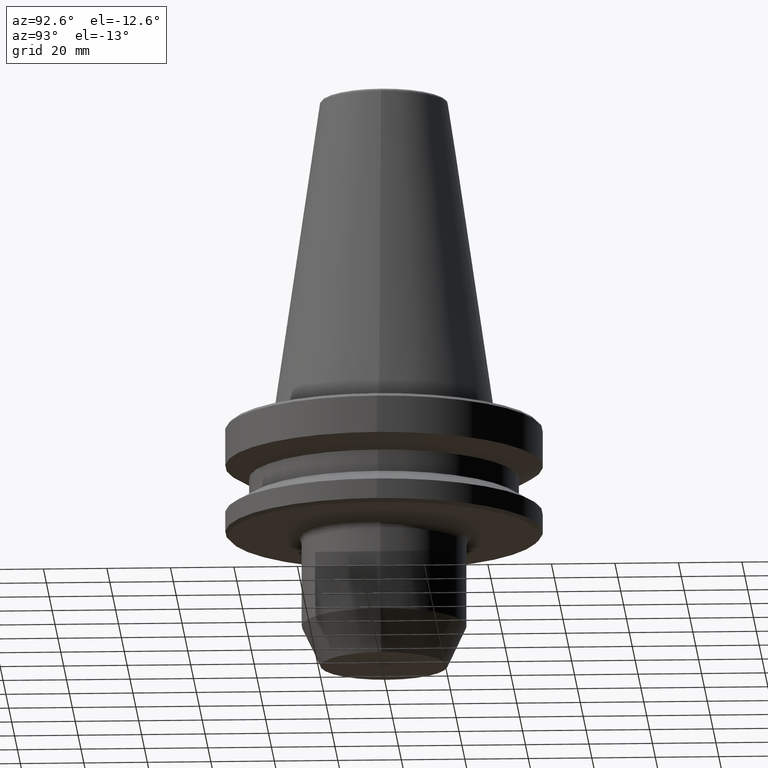
[diagram: clean part render]
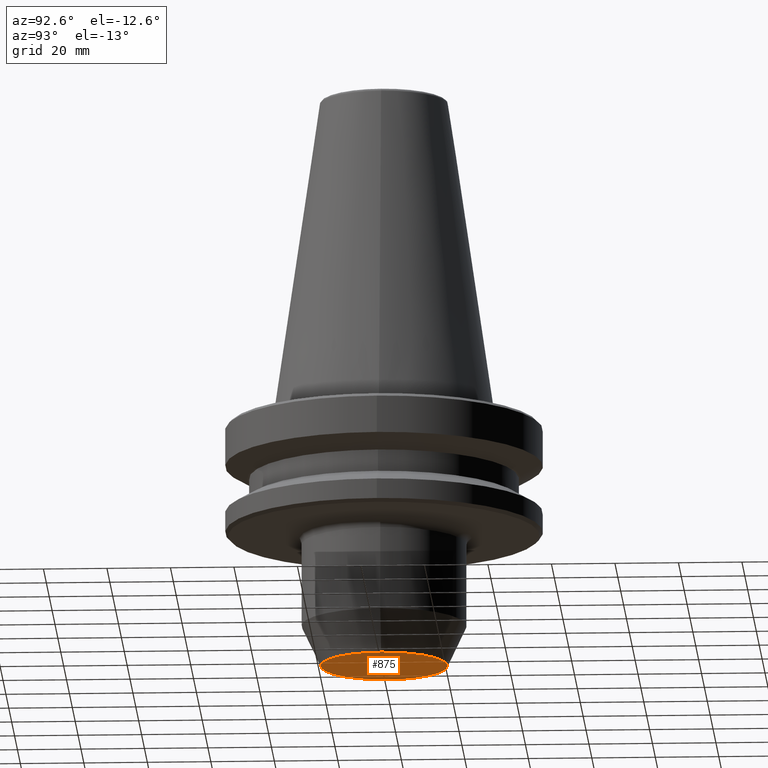
[diagram: same view with one face highlighted and labeled with its STEP entity id]
A machine part, auxiliary view. The second image highlights one B-rep face of the part: STEP entity #875.
In plain terms, the highlighted planar face has unit normal (0, -0, 1).
Its self-contained STEP definition (entity closure, byte-faithful):
#7 = DIRECTION ( 'NONE',  ( 0.0000000000000000000, -0.0000000000000000000, 1.000000000000000000 ) ) ;
#26 = DIRECTION ( 'NONE',  ( -0.0000000000000000000, -0.0000000000000000000, 1.000000000000000000 ) ) ;
#173 = AXIS2_PLACEMENT_3D ( 'NONE', #992, #26, #785 ) ;
#187 = ORIENTED_EDGE ( 'NONE', *, *, #765, .F. ) ;
#224 = CIRCLE ( 'NONE', #173, 19.99999999999790700 ) ;
#237 = CARTESIAN_POINT ( 'NONE',  ( 0.0000000000000000000, 19.99999999999790700, -80.00000000000140700 ) ) ;
#260 = DIRECTION ( 'NONE',  ( 1.000000000000000000, 0.0000000000000000000, 0.0000000000000000000 ) ) ;
#267 = CARTESIAN_POINT ( 'NONE',  ( 19.99999999999790700, 0.0000000000000000000, -80.00000000000142100 ) ) ;
#342 = VERTEX_POINT ( 'NONE', #665 ) ;
#349 = VERTEX_POINT ( 'NONE', #267 ) ;
#405 = DIRECTION ( 'NONE',  ( 1.000000000000000000, 0.0000000000000000000, 0.0000000000000000000 ) ) ;
#511 = CARTESIAN_POINT ( 'NONE',  ( 0.0000000000000000000, 0.0000000000000000000, -80.00000000000142100 ) ) ;
#570 = AXIS2_PLACEMENT_3D ( 'NONE', #237, #7, #260 ) ;
#571 = FACE_OUTER_BOUND ( 'NONE', #879, .T. ) ;
#598 = ORIENTED_EDGE ( 'NONE', *, *, #861, .F. ) ;
#665 = CARTESIAN_POINT ( 'NONE',  ( -19.99999999999790700, 2.816687638038642600E-015, -80.00000000000142100 ) ) ;
#685 = AXIS2_PLACEMENT_3D ( 'NONE', #511, #848, #405 ) ;
#765 = EDGE_CURVE ( 'NONE', #349, #342, #907, .T. ) ;
#785 = DIRECTION ( 'NONE',  ( 1.000000000000000000, 0.0000000000000000000, 0.0000000000000000000 ) ) ;
#804 = PLANE ( 'NONE',  #570 ) ;
#848 = DIRECTION ( 'NONE',  ( -0.0000000000000000000, -0.0000000000000000000, 1.000000000000000000 ) ) ;
#861 = EDGE_CURVE ( 'NONE', #342, #349, #224, .T. ) ;
#875 = ADVANCED_FACE ( 'NONE', ( #571 ), #804, .F. ) ;
#879 = EDGE_LOOP ( 'NONE', ( #187, #598 ) ) ;
#907 = CIRCLE ( 'NONE', #685, 19.99999999999790700 ) ;
#992 = CARTESIAN_POINT ( 'NONE',  ( 0.0000000000000000000, 0.0000000000000000000, -80.00000000000142100 ) ) ;